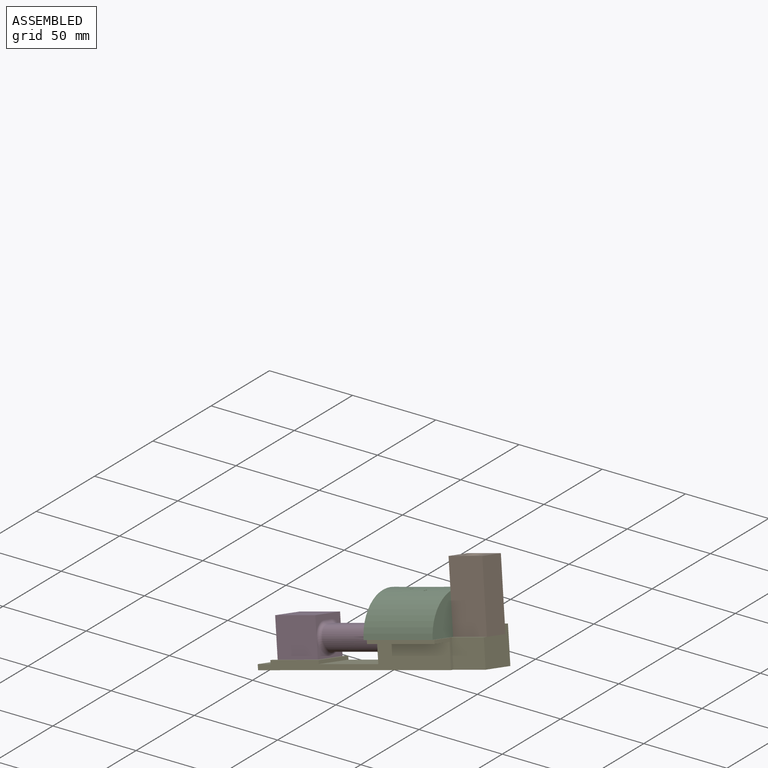
[diagram: assembled view]
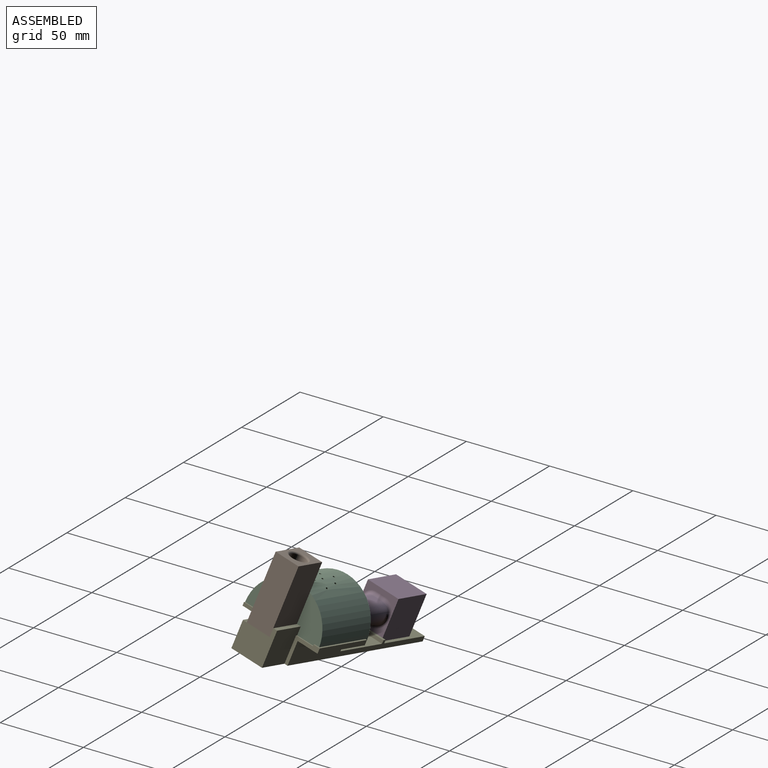
[diagram: assembled view, second angle]
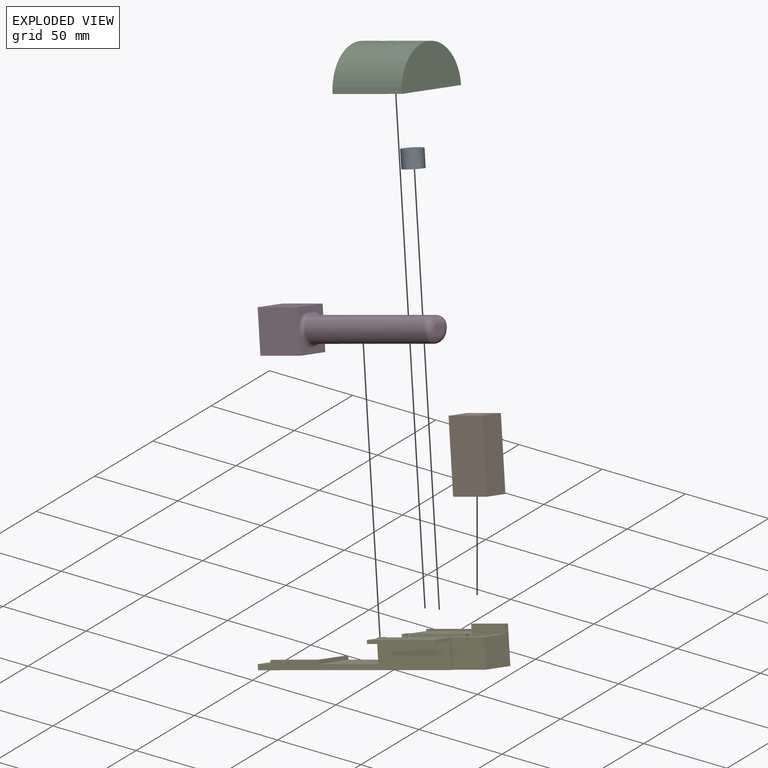
[diagram: exploded view]
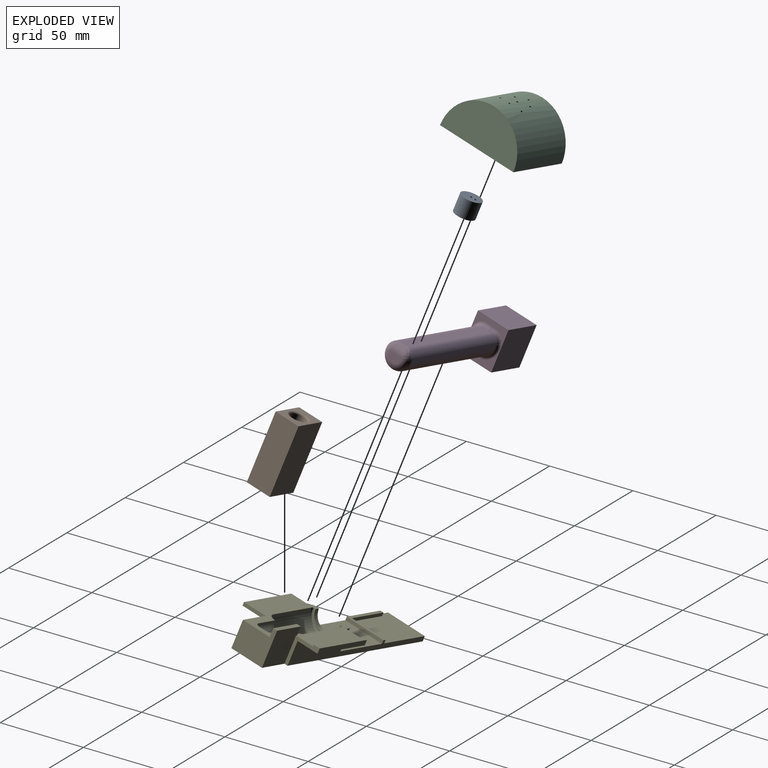
[diagram: exploded view, second angle]
ASSEMBLY  parts=5 mates=10
PART A: 7 faces, bbox 12x12x10 mm
  f0: cylinder r=6mm len=12mm, axis (0,0,-1), area 377mm2, adj f1,f2
  f1: plane 12x12mm, normal (0,0,1), area 109.6mm2, adj f0,f5,f6
  f2: plane 12x12mm, normal (0,0,-1), area 56.4mm2, adj f0,f3
  f3: cylinder r=4.25mm len=8.5mm, axis (0,0,-1), area 213.6mm2, adj f2,f4
  f4: plane 8.5x8.5mm, normal (0,0,-1), area 53.2mm2, adj f3,f5,f6
  f5: cylinder r=0.75mm len=2mm, axis (0,0,-1), area 9.4mm2, adj f1,f4
  f6: cylinder r=0.75mm len=2mm, axis (0,0,-1), area 9.4mm2, adj f1,f4
PART B: 9 faces, bbox 40x21x15 mm
  f0: plane 40x15mm, normal (0,-1,0), area 600mm2, adj f1,f3,f4,f5
  f1: plane 40x21mm, normal (0,0,-1), area 840mm2, adj f0,f2,f4,f5
  f2: plane 40x15mm, normal (0,1,0), area 600mm2, adj f1,f3,f4,f5
  f3: plane 40x21mm, normal (0,0,1), area 840mm2, adj f0,f2,f4,f5
  f4: plane 21x15mm, normal (1,0,0), area 201.9mm2, adj f0,f1,f2,f3,f7
  f5: plane 21x15mm, normal (-1,0,0), area 201.9mm2, adj f0,f1,f2,f3,f8
  f6: cylinder r=5mm len=38mm, axis (-1,0,0), area 1193.8mm2, adj f7,f8
  f7: torus R=6mm, axis (1,0,0), area 52.9mm2, adj f4,f6
  f8: torus R=6mm, axis (1,0,0), area 52.9mm2, adj f5,f6
PART C: 54 faces, bbox 43x26.9x48 mm
  f0: torus R=10mm, axis (-1,0,0), area 202mm2, adj f1,f6,f10,f14,f32,f45
  f1: cone r=20mm half-angle=63.4deg, axis (-1,0,0), area 70.9mm2, adj f0,f2,f31,f44
  f2: torus R=6.73mm, axis (-1,0,0), area 57.7mm2, adj f1,f11,f30,f43
  f3: torus R=20.65mm, axis (1,0,0), area 191.6mm2, adj f5,f7,f16,f19,f20,f36,f49
  f4: torus R=10mm, axis (-1,0,0), area 174.4mm2, adj f6,f7,f10,f14,f15,f17,f18,f34
  f5: cone r=10mm half-angle=3.8deg, axis (1,0,0), area 240.5mm2, adj f3,f8,f16,f37,f39,f50,f51
  f6: cylinder r=20mm len=8.51mm, axis (-1,0,0), area 4.1mm2, adj f0,f4,f14,f33
  f7: cone r=11mm half-angle=56.3deg, axis (1,0,0), area 9.8mm2, adj f3,f4,f35,f48
  f8: torus R=9.06mm, axis (-1,0,0), area 31.5mm2, adj f5,f21,f39,f51
  f9: cylinder r=24mm len=48mm, axis (-1,0,0), area 3229.3mm2, adj f12,f13,f14,f15,f16,f17,f18,f19
  f10: cylinder r=20mm len=8.51mm, axis (-1,0,0), area 4.1mm2, adj f0,f4,f14,f46
  f11: cone r=10mm half-angle=78.7deg, axis (-1,0,0), area 120.2mm2, adj f2,f13,f29,f42
  f12: plane 48x24mm, normal (1,0,0), area 904.8mm2, adj f9,f13
  f13: plane 48.04x43.04mm, normal (0,-1,0), area 1254.2mm2, adj f9,f11,f12,f22,f24,f25,f28,f29
  f14: cylinder r=0.75mm len=4mm, axis (0,-1,0), area 18.8mm2, adj f0,f4,f6,f9,f10
  f15: cylinder r=0.75mm len=6.95mm, axis (0,-1,0), area 29.7mm2, adj f4,f9
  f16: cylinder r=0.75mm len=13.35mm, axis (0,-1,0), area 62.8mm2, adj f3,f5,f9
  f17: cylinder r=0.75mm len=4.86mm, axis (0,-1,0), area 20.4mm2, adj f4,f9
  f18: cylinder r=0.75mm len=4.83mm, axis (0,-1,0), area 20.4mm2, adj f4,f9
  f19: cylinder r=0.75mm len=12.77mm, axis (0,-1,0), area 58.4mm2, adj f3,f9
  f20: cylinder r=0.75mm len=12.95mm, axis (0,-1,0), area 57.3mm2, adj f3,f9
  f21: plane 16x7.51mm, normal (1,0,0), area 34.4mm2, adj f8,f22,f23,f24,f26,f27,f40,f53
  f22: cylinder r=8.15mm len=2.86mm, axis (1,0,0), area 5.8mm2, adj f13,f21,f25,f26,f53
  f23: plane 5.34x2mm, normal (0,-1,0), area 10.7mm2, adj f21,f25,f26,f27
  f24: cylinder r=8.15mm len=2.86mm, axis (1,0,0), area 5.8mm2, adj f13,f21,f25,f27,f40
  f25: plane 48x24mm, normal (-1,0,0), area 816mm2, adj f9,f13,f22,f23,f24,f26,f27
  f26: cylinder r=5.3mm len=4.96mm, axis (1,0,0), area 12.9mm2, adj f21,f22,f23,f25
  f27: cylinder r=5.3mm len=4.96mm, axis (1,0,0), area 12.9mm2, adj f21,f23,f24,f25
  f28: plane 34.36x16.13mm, normal (0,0,-1), area 312.4mm2, adj f13,f29,f30,f31,f32,f33,f34,f35
  f29: bspline ~6.58x2.24mm, area 6.2mm2, adj f11,f13,f28,f30
  f30: bspline ~7.36x3.37mm, area 12.1mm2, adj f2,f28,f29,f31
  f31: bspline ~7.14x4.06mm, area 12.3mm2, adj f1,f28,f30,f32
  f32: bspline ~11.62x9.29mm, area 24.9mm2, adj f0,f28,f31,f33
  f33: cylinder r=2mm len=1.79mm, axis (-1,0,0), area 1mm2, adj f6,f28,f32,f34
  f34: bspline ~11.07x7.12mm, area 21.6mm2, adj f4,f28,f33,f35
  f35: bspline ~3.63x3.14mm, area 1.6mm2, adj f7,f28,f34,f36
  f36: bspline ~11.09x10.65mm, area 19.9mm2, adj f3,f28,f35,f37
  f37: bspline ~11.3x3.32mm, area 5.3mm2, adj f5,f28,f36,f38
  f38: bspline ~0.77x0.62mm, area 0mm2, adj f37,f39,f40
  f39: bspline ~3.26x2.05mm, area 3.1mm2, adj f5,f8,f38,f40
  f40: cylinder r=2mm len=4.26mm, axis (0,-1,0), area 8.5mm2, adj f13,f21,f24,f28,f38,f39
  f41: plane 34.36x16.13mm, normal (0,0,1), area 312.4mm2, adj f13,f42,f43,f44,f45,f46,f47,f48
  f42: bspline ~8.04x2.24mm, area 6.2mm2, adj f11,f13,f41,f43
  f43: bspline ~7.62x3.38mm, area 12.1mm2, adj f2,f41,f42,f44
  f44: bspline ~9.99x5.04mm, area 12.3mm2, adj f1,f41,f43,f45
  f45: bspline ~11.61x9.29mm, area 24.9mm2, adj f0,f41,f44,f46
  f46: cylinder r=2mm len=1.79mm, axis (-1,0,0), area 1mm2, adj f10,f41,f45,f47
  f47: bspline ~11.07x7.12mm, area 21.6mm2, adj f4,f41,f46,f48
  f48: bspline ~3.63x3.14mm, area 1.6mm2, adj f7,f41,f47,f49
  f49: bspline ~9.83x9.58mm, area 19.9mm2, adj f3,f41,f48,f50
  f50: bspline ~11.6x3.44mm, area 5.3mm2, adj f5,f41,f49,f52
  f51: bspline ~3.96x2.65mm, area 3.1mm2, adj f5,f8,f52,f53
  f52: bspline ~0.91x0.73mm, area 0mm2, adj f50,f51,f53
  f53: cylinder r=2mm len=4.26mm, axis (0,1,0), area 8.5mm2, adj f13,f21,f22,f41,f51,f52
PART D: 22 faces, bbox 105.1x24.7x24 mm
  f0: plane 20x11mm, normal (1,0,0), area 83.3mm2, adj f13,f14,f16,f18,f19,f20,f21
  f1: plane 73x5.66mm, normal (0,0,1), area 413mm2, adj f5,f6,f10,f21
  f2: cylinder r=8mm len=74mm, axis (-1,0,0), area 2262.1mm2, adj f4,f5,f6,f8,f11,f18
  f3: plane 8x5mm, normal (1,0,0), area 33mm2, adj f4,f10
  f4: torus R=4mm, axis (1,0,0), area 150mm2, adj f2,f3,f8,f11
  f5: cylinder r=5mm len=73.94mm, axis (-1,0,0), area 452.2mm2, adj f1,f2,f7,f20
  f6: cylinder r=5mm len=73.94mm, axis (-1,0,0), area 452.2mm2, adj f1,f2,f9,f19
  f7: bspline ~4.83x4.83mm, area 19.6mm2, adj f5,f8,f10
  f8: bspline ~4.67x4.32mm, area 8.4mm2, adj f2,f4,f7,f10
  f9: bspline ~4.83x4.83mm, area 19.2mm2, adj f6,f10,f11
  f10: cylinder r=5mm len=7.75mm, axis (0,1,0), area 53.6mm2, adj f1,f3,f7,f8,f9,f11
  f11: bspline ~4.21x4.15mm, area 8.4mm2, adj f2,f4,f9,f10
  f12: plane 20x13mm, normal (1,0,0), area 102.9mm2, adj f14,f15,f16,f18
  f13: plane 25x20mm, normal (0,0,1), area 500mm2, adj f0,f14,f16,f17
  f14: plane 25x24mm, normal (0,-1,0), area 600mm2, adj f0,f12,f13,f15,f17
  f15: plane 25x20mm, normal (0,0,-1), area 500mm2, adj f12,f14,f16,f17
  f16: plane 25x24mm, normal (0,1,0), area 600mm2, adj f0,f12,f13,f15,f17
  f17: plane 24x20mm, normal (-1,0,0), area 480mm2, adj f13,f14,f15,f16
  f18: torus R=10mm, axis (1,0,0), area 104.8mm2, adj f0,f2,f12,f19,f20
  f19: torus R=7mm, axis (1,0,0), area 22.1mm2, adj f0,f6,f18,f21
  f20: torus R=7mm, axis (1,0,0), area 22.1mm2, adj f0,f5,f18,f21
  f21: cylinder r=2mm len=5.66mm, axis (0,-1,0), area 17.8mm2, adj f0,f1,f19,f20
PART E: 40 faces, bbox 140x49x21 mm
  f0: plane 65x48mm, normal (0,0,1), area 1418.3mm2, adj f1,f4,f5,f6,f8,f10,f11,f12
  f1: plane 16x14mm, normal (-1,0,0), area 56mm2, adj f0,f7,f8,f9,f10,f31
  f2: plane 37x24mm, normal (0,0,1), area 888mm2, adj f4,f6,f8,f28
  f3: plane 36x24mm, normal (0,0,1), area 808mm2, adj f6,f8,f23,f25,f26,f27
  f4: plane 24x13mm, normal (1,0,0), area 207.7mm2, adj f0,f2,f6,f8,f21
  f5: plane 13x3mm, normal (1,0,0), area 27mm2, adj f0,f6,f12,f13,f14,f15
  f6: plane 120x16mm, normal (0,-1,0), area 865mm2, adj f0,f2,f3,f4,f5,f7,f15,f17
  f7: plane 140x24mm, normal (0,0,-1), area 3280mm2, adj f1,f6,f8,f17,f23,f30,f31,f32
  f8: plane 120x16mm, normal (0,1,0), area 921mm2, adj f0,f1,f2,f3,f4,f7,f9,f16
  f9: plane 42x12mm, normal (0,0,-1), area 504mm2, adj f1,f8,f10,f16
  f10: plane 42x2mm, normal (0,1,0), area 84mm2, adj f0,f1,f9,f16
  f11: cylinder r=10mm len=34mm, axis (-1,0,0), area 1068.1mm2, adj f0,f20,f24
  f12: plane 41x1mm, normal (0,1,0), area 41mm2, adj f0,f5,f13,f18
  f13: plane 42x4mm, normal (0,0,1), area 45mm2, adj f5,f12,f14,f17,f18,f19
  f14: plane 42x3mm, normal (0,-1,0), area 126mm2, adj f5,f13,f15,f17
  f15: plane 42x13mm, normal (0,0,-1), area 546mm2, adj f5,f6,f14,f17
  f16: plane 12x2mm, normal (1,0,0), area 24mm2, adj f0,f8,f9,f10
  f17: plane 17x15mm, normal (-1,0,0), area 62mm2, adj f0,f6,f7,f13,f14,f15,f19,f30
  f18: plane 3x1mm, normal (1,0,0), area 3mm2, adj f0,f12,f13,f19
  f19: plane 1x1mm, normal (0,1,0), area 1mm2, adj f0,f13,f17,f18
  f20: torus R=5mm, axis (-1,0,0), area 187.7mm2, adj f0,f11,f36
  f21: cylinder r=8.15mm len=16.3mm, axis (-1,0,0), area 76.8mm2, adj f0,f4,f22
  f22: plane 18x9mm, normal (-1,0,0), area 22.9mm2, adj f0,f21,f24
  f23: plane 24x3mm, normal (1,0,0), area 72mm2, adj f3,f6,f7,f8
  f24: torus R=9mm, axis (1,0,0), area 47.6mm2, adj f0,f11,f22
  f25: plane 22x2mm, normal (1,0,0), area 44mm2, adj f3,f6,f26,f29
  f26: plane 28x2mm, normal (0,-1,0), area 56mm2, adj f3,f25,f27,f29
  f27: plane 2x2mm, normal (1,0,0), area 4mm2, adj f3,f8,f26,f29
  f28: plane 24x2mm, normal (-1,0,0), area 48mm2, adj f2,f6,f8,f29
  f29: plane 30x24mm, normal (0,0,1), area 104mm2, adj f6,f8,f25,f26,f27,f28
  f30: plane 21x21mm, normal (0,-1,0), area 425mm2, adj f0,f7,f17,f32,f38,f39
  f31: plane 20x16mm, normal (0,1,0), area 320mm2, adj f0,f1,f7,f32
  f32: plane 21x20mm, normal (-1,0,0), area 332.5mm2, adj f0,f7,f30,f31,f37,f39
  f33: cylinder r=5mm len=14.08mm, axis (1,0,0), area 221.2mm2, adj f0,f35,f36
  f34: plane 4x2mm, normal (1,0,0), area 6.3mm2, adj f0,f35
  f35: torus R=2mm, axis (1,0,0), area 57.9mm2, adj f0,f33,f34
  f36: torus R=6mm, axis (-1,0,0), area 23.4mm2, adj f0,f20,f33
  f37: plane 21x5mm, normal (0,1,0), area 105mm2, adj f0,f32,f38,f39
  f38: plane 5x2.5mm, normal (1,0,0), area 12.5mm2, adj f0,f30,f37,f39
  f39: plane 21x2.5mm, normal (0,0,1), area 52.5mm2, adj f30,f32,f37,f38
PLACE A rot(axis=(-0.7,-0.7,-0.09),21.2deg) t=(102.87,-36.19,35.05)mm
PLACE B rot(axis=(0.63,0.45,-0.63),104.5deg) t=(127.63,-35.16,77.84)mm
PLACE C rot(axis=(0.98,-0.17,0.13),76.3deg) t=(78.25,-38.27,22.6)mm
PLACE D rot(axis=(-0.7,-0.7,-0.09),21.2deg) t=(37.2,-37.78,13.51)mm
PLACE E rot(axis=(-0.13,0.13,0.98),178deg) t=(118.09,-35.2,28.46)mm
MATE planar B.f0 <-> C.f12  axis (-0.97,0,-0.26) through (118.35,-31.02,31.34)mm
MATE planar E.f3 <-> D.f15  axis (-0.25,0.26,0.93) through (23.33,-40.9,-5.32)mm
MATE planar D.f12 <-> E.f25  axis (0.97,0,0.26) through (40.93,-41.63,-0.4)mm
MATE cylindrical A.f0 <-> C.f14  axis (0.25,-0.26,-0.93) through (101.58,-35.42,39.85)mm
MATE planar C.f13 <-> E.f0  axis (0.25,-0.26,-0.93) through (97.59,-38.27,27.78)mm
MATE planar D.f14 <-> E.f26  axis (-0.07,-0.97,0.25) through (25.19,-48.19,10.06)mm
MATE planar A.f0 <-> D.f1  axis (0.25,-0.26,-0.93) through (102.83,-36.72,35.19)mm
MATE planar C.f12 <-> E.f18  axis (0.97,0,0.26) through (115.31,-35.63,42.72)mm
MATE planar B.f1 <-> E.f37  axis (0.07,0.97,-0.25) through (123.5,-25.85,52.72)mm
MATE planar B.f6 <-> E.f0  axis (0.25,-0.26,-0.93) through (127.99,-38.27,35.93)mm
